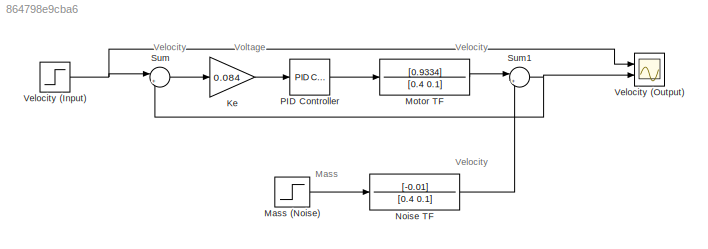
MODEL slx_864798e9cba6
KIND model
CONFIG AbsTol = auto
CONFIG EnableMultiTasking = off
CONFIG FixedStep = auto
CONFIG MaxStep = auto
CONFIG MinStep = auto
CONFIG RelTol = 1e-3
CONFIG SampleTimeConstraint = Unconstrained
CONFIG Solver = VariableStepAuto
CONFIG SolverName = VariableStepAuto
CONFIG StartTime = 0.0
CONFIG StopTime = 30
BLOCK [Gain] Ke
  Gain = 0.084
  OutDataTypeStr = Inherit: Inherit via internal rule
  ParamDataTypeStr = Inherit: Inherit via internal rule
  SaturateOnIntegerOverflow = off
BLOCK [Step] Mass (Noise)
  After = 100
  SampleTime = 0
  Time = 15
BLOCK [TransferFcn] Motor TF
  Denominator = [0.4 0.1]
  Numerator = [0.9334]
BLOCK [TransferFcn] Noise TF
  Denominator = [0.4 0.1]
  Numerator = [-0.01]
BLOCK [Reference] PID Controller  REF=simulink/Continuous/PID Controller
  Ports = [1, 1]
  SourceBlock = simulink/Continuous/PID Controller
  SourceProductBaseCode = SL
  SourceProductName = Simulink
  SourceType = PID 1dof
BLOCK [Sum] Sum
  IconShape = round
  InputSameDT = off
  Inputs = |+-
  OutDataTypeStr = Inherit: Inherit via internal rule
  Ports = [2, 1]
  SaturateOnIntegerOverflow = off
BLOCK [Sum] Sum1
  IconShape = round
  InputSameDT = off
  Inputs = |++
  OutDataTypeStr = Inherit: Inherit via internal rule
  Ports = [2, 1]
  SaturateOnIntegerOverflow = off
BLOCK [Step] Velocity (Input)
  After = 30
  SampleTime = 0
  Time = 0
BLOCK [Scope] Velocity (Output)
  Floating = off
  NumInputPorts = 2
  Ports = [2]
  ScopeSpecificationString = Simulink.scopes.TimeScopeBlockCfg('CurrentConfiguration', extmgr.ConfigurationSet(extmgr.Configuration('Core','General UI',true),extmgr.Configuration('Core','Source UI',true),extmgr.Configuration('Sources','WiredSimulink',true),extmgr.Configuration('Visuals','Time Domain',true,'SerializedDisplays',{struct('MinYLimReal','-4.07635','MaxYLimReal','36.68715','YLabelReal','','MinYLimMag','0.00000','Max...<+1486ch>
ANNOTATION (root): Mass
ANNOTATION (root): Velocity
ANNOTATION (root): Voltage
LINE Ke:1 -> PID Controller:1
LINE Mass (Noise):1 -> Noise TF:1
LINE Motor TF:1 -> Sum1:1
LINE Noise TF:1 -> Sum1:2
LINE PID Controller:1 -> Motor TF:1
NET Sum1:1 -> Sum:2, Velocity (Output):2
LINE Sum:1 -> Ke:1
NET Velocity (Input):1 -> Sum:1, Velocity (Output):1
note: NET lines group one-source signal fan-out (src -> all destinations, sorted); 1:1 wires keep LINE
